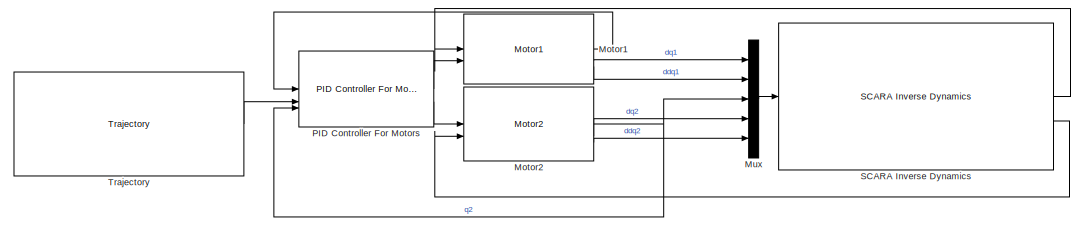
[diagram: root canvas - part 1/2, middle left region]
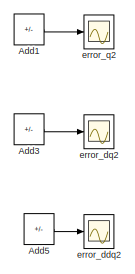
[diagram: root canvas - part 2/2, middle right region]
MODEL slx_fa17137afeb1
KIND model
CONFIG AbsTol = auto
CONFIG EnableMultiTasking = off
CONFIG FixedStep = auto
CONFIG MaxStep = auto
CONFIG MinStep = auto
CONFIG RelTol = 1e-3
CONFIG SampleTimeConstraint = Unconstrained
CONFIG SolverName = ode23t
CONFIG StartTime = 0.0
CONFIG StopTime = 10.0
BLOCK [Sum] Add1
  IconShape = rectangular
  Inputs = +-
BLOCK [Sum] Add3
  IconShape = rectangular
  Inputs = +-
BLOCK [Sum] Add5
  IconShape = rectangular
  Inputs = +-
BLOCK [Reference] Motor1  REF=SCR/Motor1
  NameLocation = top
  SourceBlock = SCR/Motor1
BLOCK [Reference] Motor2  REF=SCR/Motor2
  SourceBlock = SCR/Motor2
BLOCK [Mux] Mux
  DisplayOption = bar
  Inputs = 5
BLOCK [Reference] PID Controller For Motors  REF=SCR/PID Controller For Motors
  SourceBlock = SCR/PID Controller For Motors
BLOCK [Reference] SCARA Inverse Dynamics  REF=SCR/SCARA Inverse Dynamics
  SourceBlock = SCR/SCARA Inverse Dynamics
BLOCK [Reference] Trajectory  REF=SCR/Trajectory
  SourceBlock = SCR/Trajectory
BLOCK [Scope] error_ddq2
  ActiveDisplayYMaximum = 0.07081
  ActiveDisplayYMinimum = -0.09392
  DataLoggingVariableName = ScopeData3
  Floating = off
  GraphicalSettings = {"GraphicalSettings":{"LegacySettings":true,"Style":{"Style":{"AxesColor":"[0 0 0]","ChannelNames":[""],"ColorOrder":"[1 0.909803921568627 0.392156862745098;0.149019607843137 0.549019607843137 0.866666666666667;0.96078431372549 0.466666666666667 0.16078431372549;0.286274509803922 0.858823529411765 0.250980392156863;0.752941176470588 0.36078431372549 0.984313725490196;0.423529411764706 0.9568627450...<+455ch>  <repeated x3 — deduplicated; at blocks: error_ddq2, error_dq2, error_q2>
  MultipleDisplayCache = [{"MaxYLimMag":0.09392,"MaxYLimReal":0.07081,"MinYLimMag":0,"MinYLimReal":-0.09392,"PlotAsMagnitudePhase":false,"ShowGrid":true,"ShowLegend":true,"Title":"%<SignalLabel>","YLabel":""}]
  NumInputPorts = 1
  ShowLegend = on
  WasSavedAsWebScope = on
  WindowPosition = [251 430 560 416]
BLOCK [Scope] error_dq2
  ActiveDisplayYMaximum = 0.13825
  ActiveDisplayYMinimum = -0.08986
  DataLoggingVariableName = ScopeData5
  Floating = off
  MultipleDisplayCache = [{"MaxYLimMag":0.13825,"MaxYLimReal":0.13825,"MinYLimMag":0,"MinYLimReal":-0.08986,"PlotAsMagnitudePhase":false,"ShowGrid":true,"ShowLegend":true,"Title":"%<SignalLabel>","YLabel":""}]
  NumInputPorts = 1
  ShowLegend = on
  WasSavedAsWebScope = on
  WindowPosition = [29 500 560 420]
BLOCK [Scope] error_q2
  ActiveDisplayYMaximum = 0.24541
  ActiveDisplayYMinimum = -0.25125
  DataLoggingVariableName = ScopeData7
  Floating = off
  MultipleDisplayCache = [{"MaxYLimMag":0.25125,"MaxYLimReal":0.24541,"MinYLimMag":0,"MinYLimReal":-0.25125,"PlotAsMagnitudePhase":false,"ShowGrid":true,"ShowLegend":true,"Title":"%<SignalLabel>","YLabel":""}]
  NumInputPorts = 1
  ShowLegend = on
  WasSavedAsWebScope = on
  WindowPosition = [67 -10 560 420]
LINE Add1:1 -> error_q2:1
LINE Add3:1 -> error_dq2:1
LINE Add5:1 -> error_ddq2:1
LINE Motor1:1 -> PID Controller For Motors:1
LINE Motor1:2 -> Mux:1
LINE Motor1:3 -> Mux:2
NET Motor2:1 -> Mux:3, PID Controller For Motors:3
LINE Motor2:2 -> Mux:4
LINE Motor2:3 -> Mux:5
LINE Mux:1 -> SCARA Inverse Dynamics:1
LINE PID Controller For Motors:1 -> Motor1:2
LINE PID Controller For Motors:2 -> Motor2:1
LINE SCARA Inverse Dynamics:1 -> Motor1:1
LINE SCARA Inverse Dynamics:2 -> Motor2:2
LINE Trajectory:1 -> PID Controller For Motors:2
note: NET lines group one-source signal fan-out (src -> all destinations, sorted); 1:1 wires keep LINE
